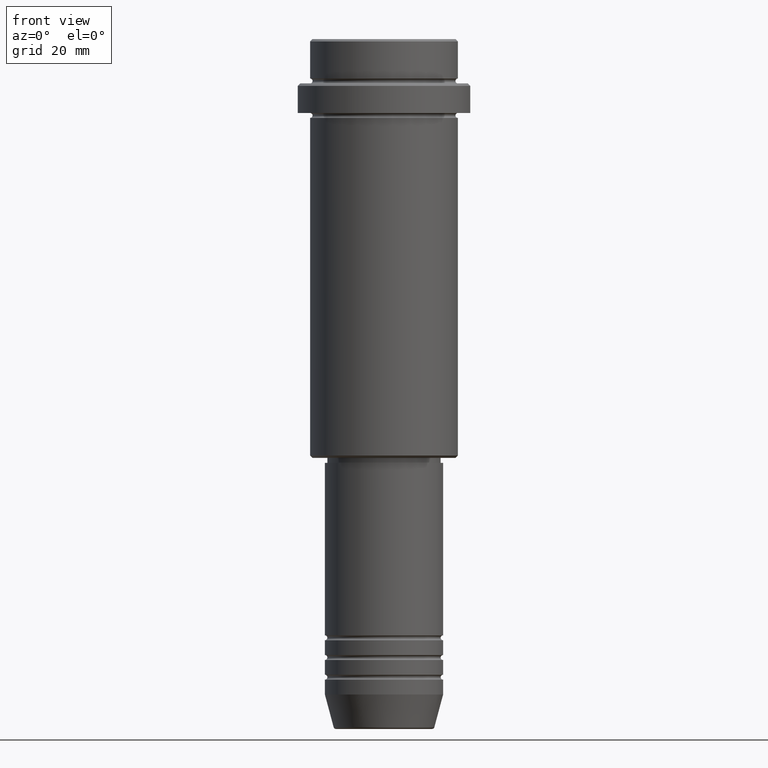
[diagram: clean part render]
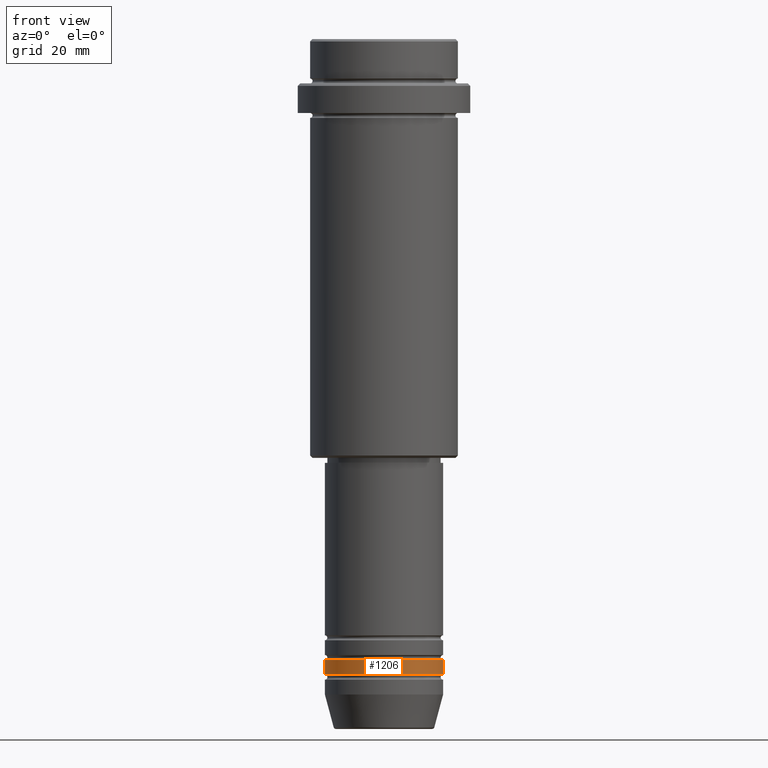
[diagram: same view with one face highlighted and labeled with its STEP entity id]
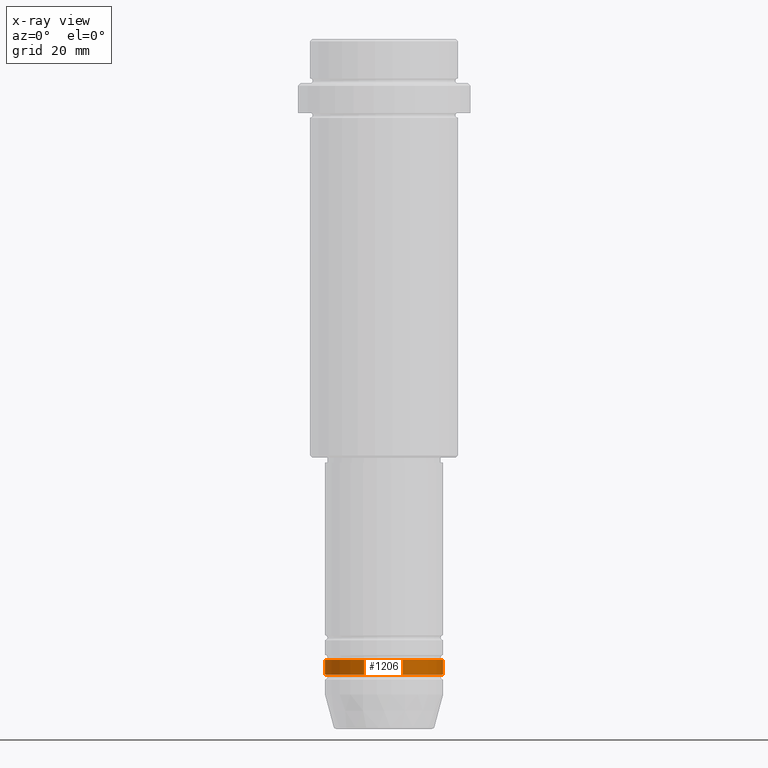
[diagram: x-ray of the same camera — body ghosted, the highlighted face saturated]
A machine part, front view. The second image highlights one B-rep face of the part: STEP entity #1206.
The next image is the same camera in x-ray: the body ghosted, the highlighted face saturated — about 0% of this face is hidden behind the body in this view.
In plain terms, the highlighted cylindrical surface (partial cylindrical patch) has radius 12 mm, axis along (-0, -0, 1).
Its self-contained STEP definition (entity closure, byte-faithful):
#5 = VERTEX_POINT ( 'NONE', #1352 ) ;
#62 = CARTESIAN_POINT ( 'NONE',  ( 12.00000000000000000, 0.000000000000000000, -125.9999999999998863 ) ) ;
#63 = CIRCLE ( 'NONE', #862, 12.00000000000000000 ) ;
#101 = ORIENTED_EDGE ( 'NONE', *, *, #489, .F. ) ;
#119 = CARTESIAN_POINT ( 'NONE',  ( 0.000000000000000000, 0.000000000000000000, -128.9999999999998863 ) ) ;
#184 = LINE ( 'NONE', #947, #732 ) ;
#186 = DIRECTION ( 'NONE',  ( -0.000000000000000000, -0.000000000000000000, 1.000000000000000000 ) ) ;
#240 = CIRCLE ( 'NONE', #565, 12.00000000000000000 ) ;
#247 = DIRECTION ( 'NONE',  ( -0.000000000000000000, -0.000000000000000000, 1.000000000000000000 ) ) ;
#308 = EDGE_LOOP ( 'NONE', ( #871, #328, #1308, #101 ) ) ;
#328 = ORIENTED_EDGE ( 'NONE', *, *, #1096, .T. ) ;
#345 = VERTEX_POINT ( 'NONE', #669 ) ;
#363 = FACE_OUTER_BOUND ( 'NONE', #308, .T. ) ;
#423 = VERTEX_POINT ( 'NONE', #62 ) ;
#489 = EDGE_CURVE ( 'NONE', #345, #423, #240, .T. ) ;
#565 = AXIS2_PLACEMENT_3D ( 'NONE', #1040, #835, #813 ) ;
#587 = EDGE_CURVE ( 'NONE', #1298, #345, #1061, .T. ) ;
#621 = DIRECTION ( 'NONE',  ( -0.000000000000000000, -0.000000000000000000, 1.000000000000000000 ) ) ;
#669 = CARTESIAN_POINT ( 'NONE',  ( -12.00000000000000000, 1.469576158976823947E-15, -125.9999999999998863 ) ) ;
#732 = VECTOR ( 'NONE', #621, 1000.000000000000000 ) ;
#813 = DIRECTION ( 'NONE',  ( 1.000000000000000000, 0.000000000000000000, 0.000000000000000000 ) ) ;
#835 = DIRECTION ( 'NONE',  ( -0.000000000000000000, -0.000000000000000000, 1.000000000000000000 ) ) ;
#858 = DIRECTION ( 'NONE',  ( -0.000000000000000000, -0.000000000000000000, 1.000000000000000000 ) ) ;
#862 = AXIS2_PLACEMENT_3D ( 'NONE', #119, #858, #1309 ) ;
#871 = ORIENTED_EDGE ( 'NONE', *, *, #587, .F. ) ;
#916 = CYLINDRICAL_SURFACE ( 'NONE', #1272, 12.00000000000000000 ) ;
#947 = CARTESIAN_POINT ( 'NONE',  ( 12.00000000000000000, 0.000000000000000000, 0.000000000000000000 ) ) ;
#959 = EDGE_CURVE ( 'NONE', #5, #423, #184, .T. ) ;
#1040 = CARTESIAN_POINT ( 'NONE',  ( 0.000000000000000000, 0.000000000000000000, -125.9999999999998863 ) ) ;
#1061 = LINE ( 'NONE', #1070, #1409 ) ;
#1070 = CARTESIAN_POINT ( 'NONE',  ( -12.00000000000000000, 1.469576158976823947E-15, 0.000000000000000000 ) ) ;
#1096 = EDGE_CURVE ( 'NONE', #1298, #5, #63, .T. ) ;
#1120 = CARTESIAN_POINT ( 'NONE',  ( -12.00000000000000000, 1.469576158976823947E-15, -128.9999999999998863 ) ) ;
#1206 = ADVANCED_FACE ( 'NONE', ( #363 ), #916, .T. ) ;
#1237 = CARTESIAN_POINT ( 'NONE',  ( 0.000000000000000000, 0.000000000000000000, 0.000000000000000000 ) ) ;
#1272 = AXIS2_PLACEMENT_3D ( 'NONE', #1237, #247, #1348 ) ;
#1298 = VERTEX_POINT ( 'NONE', #1120 ) ;
#1308 = ORIENTED_EDGE ( 'NONE', *, *, #959, .T. ) ;
#1309 = DIRECTION ( 'NONE',  ( 1.000000000000000000, 0.000000000000000000, 0.000000000000000000 ) ) ;
#1348 = DIRECTION ( 'NONE',  ( 1.000000000000000000, 0.000000000000000000, 0.000000000000000000 ) ) ;
#1352 = CARTESIAN_POINT ( 'NONE',  ( 12.00000000000000000, 0.000000000000000000, -128.9999999999998863 ) ) ;
#1409 = VECTOR ( 'NONE', #186, 1000.000000000000000 ) ;